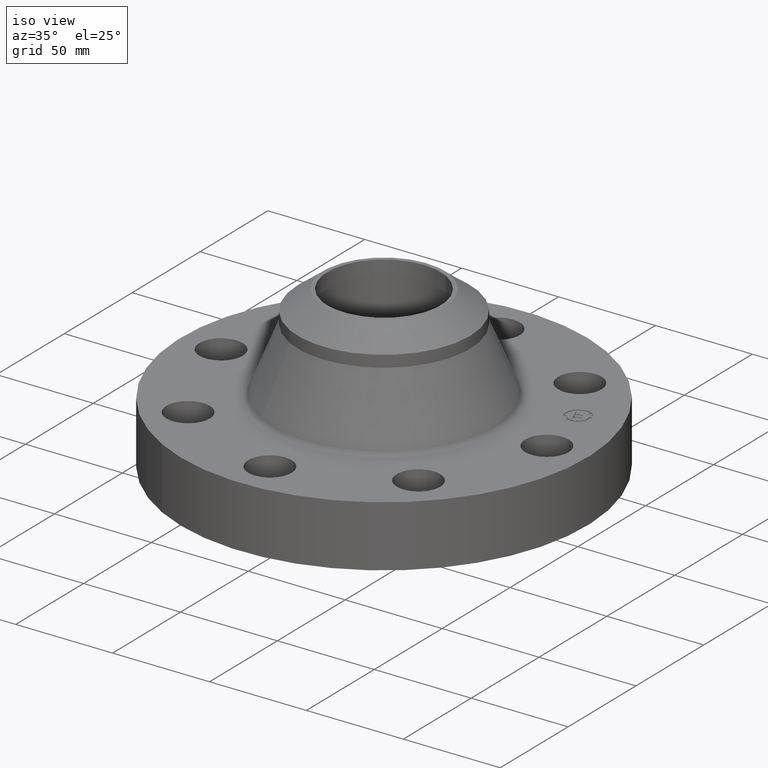
[diagram: clean part render]
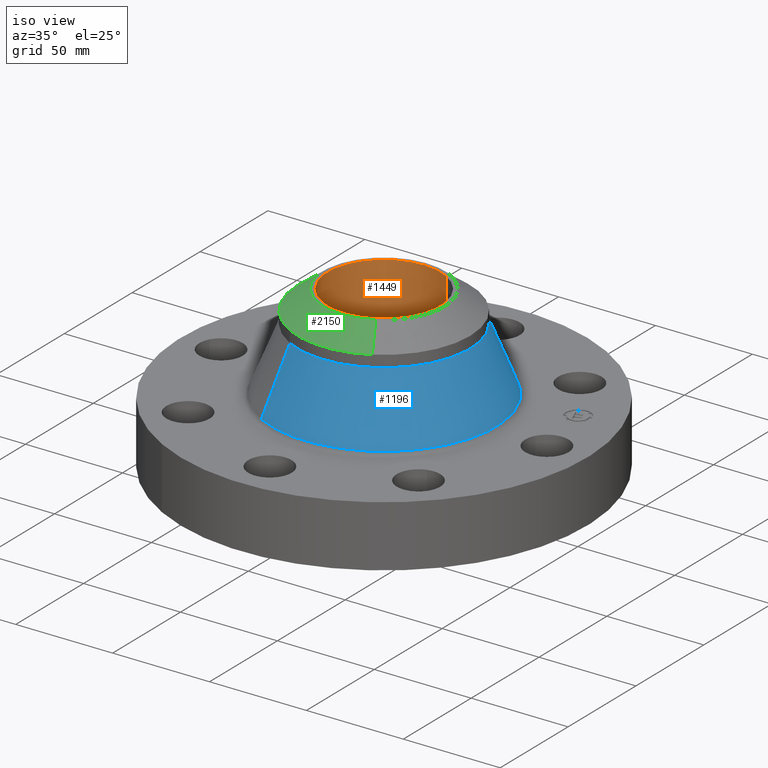
[diagram: same view with three faces highlighted in distinct colors, each labeled with its STEP entity id]
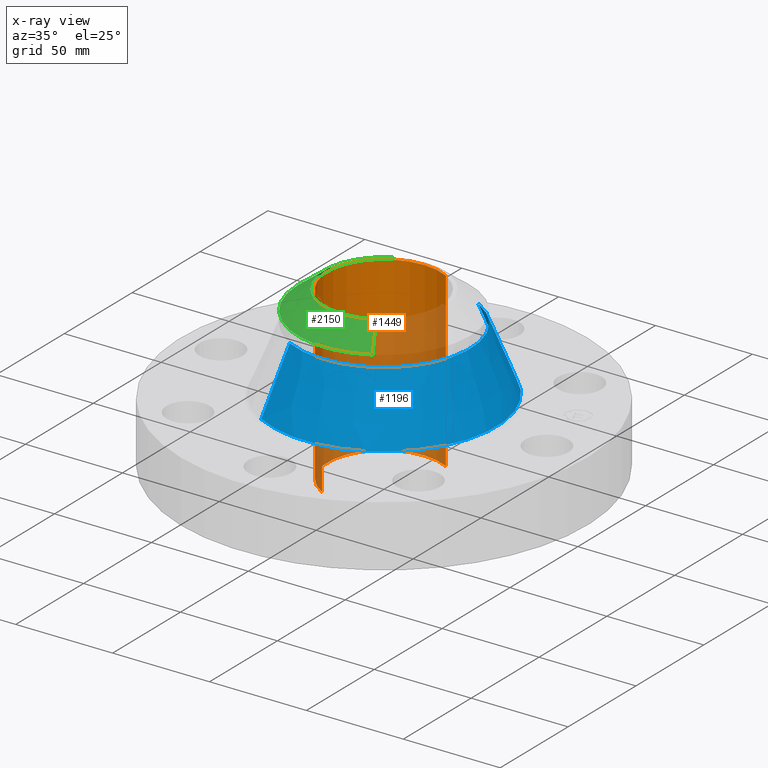
[diagram: x-ray of the same camera — body ghosted, the three highlighted faces saturated]
A machine part, iso view with three faces highlighted in distinct colors.
The next image is the same camera in x-ray (body ghosted, the three faces saturated) — at least one of them is partly hidden behind the body in this view.
Their STEP definitions:

[orange] entity #1449 — the highlighted cylindrical surface (partial cylindrical patch) has radius 29.21 mm, axis along (-0, 0, -1).
#1127=AXIS2_PLACEMENT_3D('Circle Axis2P3D',#1125,#1126,$) ;
#1436=AXIS2_PLACEMENT_3D('Cylinder Axis2P3D',#1433,#1434,#1435) ;
#1440=AXIS2_PLACEMENT_3D('Circle Axis2P3D',#1438,#1439,$) ;
#1120=CARTESIAN_POINT('Vertex',(0.551339369414,1.00921994614,-0.250000000001)) ;
#1122=CARTESIAN_POINT('Vertex',(-0.551339369395,-1.00921994617,-0.250000000034)) ;
#1125=CARTESIAN_POINT('Axis2P3D Location',(-1.281158906E-011,8.46580898122E-012,-0.250000000001)) ;
#1404=CARTESIAN_POINT('Vertex',(0.551339369395,1.00921994617,3.24999999998)) ;
#1406=CARTESIAN_POINT('Vertex',(-0.551339369414,-1.00921994614,3.25000000001)) ;
#1409=CARTESIAN_POINT('Line Origine',(0.551339369395,1.00921994617,1.49999999999)) ;
#1414=CARTESIAN_POINT('Line Origine',(-0.551339369395,-1.00921994617,1.49999999999)) ;
#1433=CARTESIAN_POINT('Axis2P3D Location',(0.,0.,1.50000000001)) ;
#1438=CARTESIAN_POINT('Axis2P3D Location',(0.,0.,3.24999999998)) ;
#1126=DIRECTION('Axis2P3D Direction',(0.,0.,-0.0393700787402)) ;
#1410=DIRECTION('Vector Direction',(0.,0.,-0.0393700787402)) ;
#1415=DIRECTION('Vector Direction',(0.,0.,-0.0393700787402)) ;
#1434=DIRECTION('Axis2P3D Direction',(-0.,0.,-0.0393700787402)) ;
#1435=DIRECTION('Axis2P3D XDirection',(-0.0188750212049,-0.0345504945626,0.)) ;
#1439=DIRECTION('Axis2P3D Direction',(-0.,0.,-0.0393700787402)) ;
#1411=VECTOR('Line Direction',#1410,0.0393700787402) ;
#1416=VECTOR('Line Direction',#1415,0.0393700787402) ;
#1444=ORIENTED_EDGE('',*,*,#1442,.F.) ;
#1445=ORIENTED_EDGE('',*,*,#1418,.T.) ;
#1446=ORIENTED_EDGE('',*,*,#1129,.T.) ;
#1447=ORIENTED_EDGE('',*,*,#1413,.F.) ;
#1449=ADVANCED_FACE('PartBody',(#1448),#1437,.F.) ;
#1128=CIRCLE('generated circle',#1127,1.14999999998) ;
#1441=CIRCLE('generated circle',#1440,1.15) ;
#1437=CYLINDRICAL_SURFACE('generated cylinder',#1436,1.15) ;
#1129=EDGE_CURVE('',#1123,#1121,#1128,.T.) ;
#1413=EDGE_CURVE('',#1405,#1121,#1412,.T.) ;
#1418=EDGE_CURVE('',#1407,#1123,#1417,.T.) ;
#1442=EDGE_CURVE('',#1407,#1405,#1441,.T.) ;
#1443=EDGE_LOOP('',(#1444,#1445,#1446,#1447)) ;
#1448=FACE_OUTER_BOUND('',#1443,.T.) ;
#1412=LINE('Line',#1409,#1411) ;
#1417=LINE('Line',#1414,#1416) ;
#1121=VERTEX_POINT('',#1120) ;
#1123=VERTEX_POINT('',#1122) ;
#1405=VERTEX_POINT('',#1404) ;
#1407=VERTEX_POINT('',#1406) ;

[blue] entity #1196 — the highlighted conical surface has half-angle 22.324 deg.
#1015=AXIS2_PLACEMENT_3D('Circle Axis2P3D',#1013,#1014,$) ;
#1183=AXIS2_PLACEMENT_3D('Cone Axis2P3D',#1180,#1181,#1182) ;
#1187=AXIS2_PLACEMENT_3D('Circle Axis2P3D',#1185,#1186,$) ;
#979=CARTESIAN_POINT('Vertex',(-1.09282286112,-2.00039882928,1.32441902054)) ;
#986=CARTESIAN_POINT('Vertex',(1.09282286112,2.00039882928,1.32441902054)) ;
#1013=CARTESIAN_POINT('Axis2P3D Location',(0.,0.,1.32441902054)) ;
#1147=CARTESIAN_POINT('Line Origine',(-0.96590877684,-1.7680841563,1.9691109016)) ;
#1151=CARTESIAN_POINT('Vertex',(-0.838994692563,-1.53576948332,2.61380278266)) ;
#1158=CARTESIAN_POINT('Vertex',(0.838994692562,1.53576948332,2.61380278266)) ;
#1161=CARTESIAN_POINT('Line Origine',(0.96590877684,1.7680841563,1.9691109016)) ;
#1180=CARTESIAN_POINT('Axis2P3D Location',(0.,0.,2.61380278266)) ;
#1185=CARTESIAN_POINT('Axis2P3D Location',(0.,0.,2.61380278266)) ;
#1014=DIRECTION('Axis2P3D Direction',(-0.,0.,-0.0393700787402)) ;
#1148=DIRECTION('Vector Direction',(-0.00716951628322,-0.013123711527,-0.0364193538112)) ;
#1162=DIRECTION('Vector Direction',(0.00716951628322,0.013123711527,-0.0364193538112)) ;
#1181=DIRECTION('Axis2P3D Direction',(0.,0.,-0.0393700787402)) ;
#1182=DIRECTION('Axis2P3D XDirection',(0.0188750212049,0.0345504945626,0.)) ;
#1186=DIRECTION('Axis2P3D Direction',(-0.,0.,-0.0393700787402)) ;
#1149=VECTOR('Line Direction',#1148,0.0393700787402) ;
#1163=VECTOR('Line Direction',#1162,0.0393700787402) ;
#1191=ORIENTED_EDGE('',*,*,#1017,.F.) ;
#1192=ORIENTED_EDGE('',*,*,#1165,.T.) ;
#1193=ORIENTED_EDGE('',*,*,#1189,.T.) ;
#1194=ORIENTED_EDGE('',*,*,#1153,.F.) ;
#1196=ADVANCED_FACE('PartBody',(#1195),#1184,.T.) ;
#1016=CIRCLE('generated circle',#1015,2.27944231819) ;
#1188=CIRCLE('generated circle',#1187,1.75000000001) ;
#1184=CONICAL_SURFACE('Cone',#1183,1.75000000001,0.389624943851) ;
#1017=EDGE_CURVE('',#987,#980,#1016,.T.) ;
#1153=EDGE_CURVE('',#980,#1152,#1150,.F.) ;
#1165=EDGE_CURVE('',#987,#1159,#1164,.F.) ;
#1189=EDGE_CURVE('',#1159,#1152,#1188,.T.) ;
#1190=EDGE_LOOP('',(#1191,#1192,#1193,#1194)) ;
#1195=FACE_OUTER_BOUND('',#1190,.T.) ;
#1150=LINE('Line',#1147,#1149) ;
#1164=LINE('Line',#1161,#1163) ;
#980=VERTEX_POINT('',#979) ;
#987=VERTEX_POINT('',#986) ;
#1152=VERTEX_POINT('',#1151) ;
#1159=VERTEX_POINT('',#1158) ;

[green] entity #2150 — the highlighted conical surface has half-angle 52.5 deg.
#1478=AXIS2_PLACEMENT_3D('Circle Axis2P3D',#1476,#1477,$) ;
#1517=AXIS2_PLACEMENT_3D('Circle Axis2P3D',#1515,#1516,$) ;
#2109=AXIS2_PLACEMENT_3D('Circle Axis2P3D',#2107,#2108,$) ;
#2131=AXIS2_PLACEMENT_3D('Cone Axis2P3D',#2128,#2129,#2130) ;
#1473=CARTESIAN_POINT('Vertex',(-0.838994692563,-1.53576948332,2.8500232551)) ;
#1476=CARTESIAN_POINT('Axis2P3D Location',(0.,0.,2.8500232551)) ;
#1480=CARTESIAN_POINT('Vertex',(-0.838994692564,1.53576948332,2.8500232551)) ;
#1512=CARTESIAN_POINT('Vertex',(0.838994692564,-1.53576948332,2.8500232551)) ;
#1515=CARTESIAN_POINT('Axis2P3D Location',(0.,0.,2.8500232551)) ;
#2102=CARTESIAN_POINT('Vertex',(0.589089411806,-1.0783209353,3.25000000001)) ;
#2104=CARTESIAN_POINT('Vertex',(-0.589089411806,1.0783209353,3.25000000001)) ;
#2107=CARTESIAN_POINT('Axis2P3D Location',(-4.36653687836E-011,-2.11876011049E-011,3.25000000001)) ;
#2128=CARTESIAN_POINT('Axis2P3D Location',(0.,0.,3.25000000001)) ;
#2133=CARTESIAN_POINT('Line Origine',(0.714042052181,-1.3070452093,3.05001162755)) ;
#2138=CARTESIAN_POINT('Line Origine',(-0.714042052181,1.3070452093,3.05001162755)) ;
#1477=DIRECTION('Axis2P3D Direction',(-0.,0.,-0.0393700787402)) ;
#1516=DIRECTION('Axis2P3D Direction',(-0.,0.,-0.0393700787402)) ;
#2108=DIRECTION('Axis2P3D Direction',(0.,0.,-0.0393700787402)) ;
#2129=DIRECTION('Axis2P3D Direction',(-0.,-0.,-0.0393700787402)) ;
#2130=DIRECTION('Axis2P3D XDirection',(0.0188750212049,-0.0345504945626,0.)) ;
#2134=DIRECTION('Vector Direction',(0.014974561121,-0.02741075027,-0.023966985394)) ;
#2139=DIRECTION('Vector Direction',(-0.014974561121,0.02741075027,-0.023966985394)) ;
#2135=VECTOR('Line Direction',#2134,0.0393700787402) ;
#2140=VECTOR('Line Direction',#2139,0.0393700787402) ;
#2144=ORIENTED_EDGE('',*,*,#2137,.F.) ;
#2145=ORIENTED_EDGE('',*,*,#2111,.F.) ;
#2146=ORIENTED_EDGE('',*,*,#2142,.T.) ;
#2147=ORIENTED_EDGE('',*,*,#1482,.T.) ;
#2148=ORIENTED_EDGE('',*,*,#1519,.F.) ;
#2150=ADVANCED_FACE('PartBody',(#2149),#2132,.T.) ;
#1479=CIRCLE('generated circle',#1478,1.75000000001) ;
#1518=CIRCLE('generated circle',#1517,1.75000000001) ;
#2110=CIRCLE('generated circle',#2109,1.22874015747) ;
#2132=CONICAL_SURFACE('Cone',#2131,1.22874015748,0.916297857297) ;
#1482=EDGE_CURVE('',#1481,#1474,#1479,.F.) ;
#1519=EDGE_CURVE('',#1513,#1474,#1518,.T.) ;
#2111=EDGE_CURVE('',#2105,#2103,#2110,.F.) ;
#2137=EDGE_CURVE('',#2103,#1513,#2136,.T.) ;
#2142=EDGE_CURVE('',#2105,#1481,#2141,.T.) ;
#2143=EDGE_LOOP('',(#2144,#2145,#2146,#2147,#2148)) ;
#2149=FACE_OUTER_BOUND('',#2143,.T.) ;
#2136=LINE('Line',#2133,#2135) ;
#2141=LINE('Line',#2138,#2140) ;
#1474=VERTEX_POINT('',#1473) ;
#1481=VERTEX_POINT('',#1480) ;
#1513=VERTEX_POINT('',#1512) ;
#2103=VERTEX_POINT('',#2102) ;
#2105=VERTEX_POINT('',#2104) ;